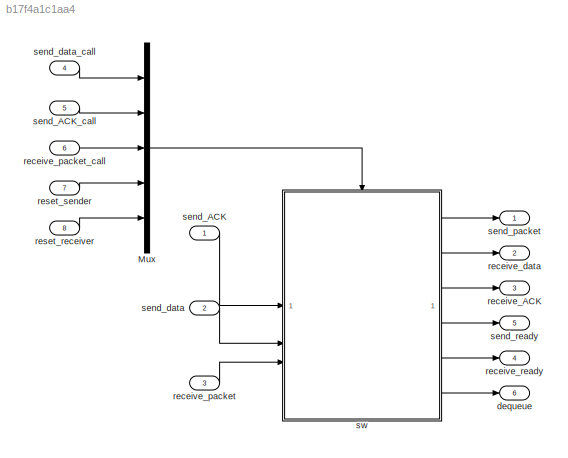
MODEL slx_b17f4a1c1aa4
KIND model
CONFIG AbsTol = auto
CONFIG EnableMultiTasking = off
CONFIG FixedStep = 0.01
CONFIG MaxStep = auto
CONFIG MinStep = auto
CONFIG RelTol = 1e-3
CONFIG SampleTimeConstraint = Unconstrained
CONFIG SolverName = FixedStepAuto
CONFIG StartTime = 0.0
CONFIG StopTime = 10.0
BLOCK [Mux] Mux
  DisplayOption = bar
  Inputs = 5
BLOCK [Outport] dequeue
  OutDataTypeStr = boolean
  Port = 6
BLOCK [Outport] receive_ACK
  OutDataTypeStr = uint8
  Port = 3
BLOCK [Outport] receive_data
  OutDataTypeStr = uint8
  Port = 2
BLOCK [Inport] receive_packet
  OutDataTypeStr = uint16
  Port = 3
BLOCK [Inport] receive_packet_call
  OutDataTypeStr = boolean
  Port = 6
BLOCK [Outport] receive_ready
  OutDataTypeStr = boolean
  Port = 4
BLOCK [Inport] reset_receiver
  OutDataTypeStr = boolean
  Port = 8
BLOCK [Inport] reset_sender
  OutDataTypeStr = boolean
  Port = 7
BLOCK [Inport] send_ACK
  OutDataTypeStr = uint8
BLOCK [Inport] send_ACK_call
  OutDataTypeStr = boolean
  Port = 5
BLOCK [Inport] send_data
  OutDataTypeStr = uint8
  Port = 2
BLOCK [Inport] send_data_call
  OutDataTypeStr = boolean
  Port = 4
BLOCK [Outport] send_packet
  OutDataTypeStr = uint16
BLOCK [Outport] send_ready
  OutDataTypeStr = boolean
  Port = 5
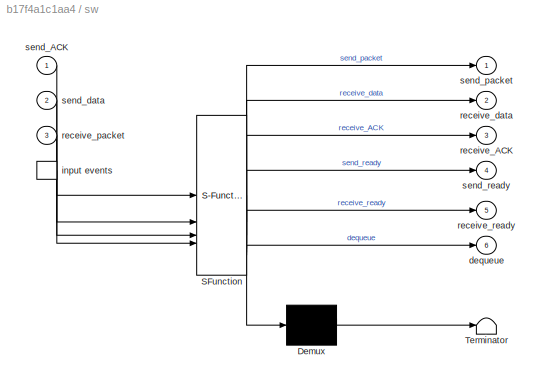
BLOCK [SubSystem] sw
  ErrorFcn = Stateflow.Translate.translate
  PermitHierarchicalResolution = ExplicitOnly
  SFBlockType = Chart
  TreatAsAtomicUnit = on
BLOCK [Demux] sw/ Demux 
  Outputs = 1
BLOCK [S-Function] sw/ SFunction 
  EnableBusSupport = on
  FunctionName = sf_sfun
  PortCounts = [4 7]
  SFcnIsStateOwnerBlock = off
  SFunctionDeploymentMode = off
  Tag = Stateflow S-Function 2
BLOCK [Terminator] sw/ Terminator 
BLOCK [Outport] sw/dequeue
  Port = 6
BLOCK [TriggerPort] sw/input events
  ShowOutputPort = on
  StatesWhenEnabling = held
  TriggerType = either
  VariantControl = (inherit)
BLOCK [Outport] sw/receive_ACK
  Port = 3
BLOCK [Outport] sw/receive_data
  Port = 2
BLOCK [Inport] sw/receive_packet
  Port = 3
BLOCK [Outport] sw/receive_ready
  Port = 5
BLOCK [Inport] sw/send_ACK
BLOCK [Inport] sw/send_data
  Port = 2
BLOCK [Outport] sw/send_packet
BLOCK [Outport] sw/send_ready
  Port = 4
LINE Mux:1 -> sw:trigger
LINE receive_packet:1 -> sw:3
LINE receive_packet_call:1 -> Mux:3
LINE reset_receiver:1 -> Mux:5
LINE reset_sender:1 -> Mux:4
LINE send_ACK:1 -> sw:1
LINE send_ACK_call:1 -> Mux:2
LINE send_data:1 -> sw:2
LINE send_data_call:1 -> Mux:1
LINE sw:1 -> send_packet:1
LINE sw:2 -> receive_data:1
LINE sw:3 -> receive_ACK:1
LINE sw:4 -> send_ready:1
LINE sw:5 -> receive_ready:1
LINE sw:6 -> dequeue:1
CHART sw states=12 transitions=8
  STATE_LABEL 'send'
  STATE_LABEL 'Idle\n'
  STATE_LABEL 'Wait_for_ack'
  STATE_LABEL '[after(TIMEOUT, sec)]{send_packet = uint16(calculation(send_data, send_tag)); \nsend(send_ready);}'
  STATE_LABEL 'reset_sender{c_ACK = 0; send_tag = 1}'
  STATE_LABEL 'send_data_call {send_packet = uint16(calculation(send_data, send_tag)); send(send_ready);}'
  STATE_LABEL 'send_ACK_call [checkACK(send_ACK, c_ACK)]{c_ACK = reset_ACK(c_ACK); send_tag = 1-send_tag; send(dequeue);}'
  STATE_LABEL 'Idle\n'
  STATE_LABEL 'Wait_for_ack'
  STATE_LABEL 'receive'
  STATE_LABEL 'state\n\n'
  STATE_LABEL 'reset_receiver{receive_c_ack = 0; receive_tag = 1;}'
  STATE_LABEL 'receive_packet_call[check_packet(receive_packet, receive_tag)]\n{[receive_data, receive_ACK, receive_c_ack] = send_data_ack(receive_packet, receive_c_ack); \nreceive_tag = 1-receive_tag; send(receive_ready);}'
  STATE_LABEL 'state\n\n'
  STATE_LABEL 'header = ack_crc(value, polynomial)'
  STATE_LABEL 'SCRIPT:\nfunction header = ack_crc(value, polynomial)\n        \n    % Initialize the CRC register to 0\n    crc = uint8(0);\n        \n    % Loop over each bit in the input byte (MSB first)\n    for i = 7:-1:-4\n        % XOR the MSB of the input with the MSB of the CRC register\n        crc = bitxor(crc, bitand(bitshift(value, -i), 1));  % Shift input and XOR\n            \n        % If the MSB of the CRC ...<+503ch>'
  STATE_LABEL '[d, a, nc]= send_data_ack(p, c)'
  STATE_LABEL 'SCRIPT:\nfunction [d, a, nc]= send_data_ack(p, c)\n\n    d = uint8(bitand(p, 0x00FF));\n\n    a = bitor(uint8(c), bitshift(uint8(ack_crc(uint8(c), 19)), 4));\n\n    if c == 15\n        nc = uint8(0);\n    else\n        nc = uint8(c+1);\n    end\n\nend'
  STATE_LABEL 'new_ca = reset_ACK(ca)'
  STATE_LABEL 'SCRIPT:\nfunction new_ca = reset_ACK(ca)\n\n    new_ca = ca + 1;\n\n    if new_ca == 16\n        new_ca = uint8(0);\n    end\nend'
  STATE_LABEL 'output = calculation(input, c_tag)'
  STATE_LABEL 'SCRIPT:\nfunction output = calculation(input, c_tag)\n    \n    \n    output = bitor(bitor(uint16(input), bitshift(uint16(c_tag), 8)), bitshift(uint16(crc4(input, c_tag, 19)), 9));\n\nend\n'
  STATE_LABEL 'f = checkACK(ack, check)'
  STATE_LABEL 'SCRIPT:\nfunction f = checkACK(ack, check)\n\n    header = uint8(bitshift(ack, -4));\n    ack_value = uint8(bitand(ack, 0x0F));\n    if ack_crc(ack_value, 19) == header && ack_value == check\n        f = true;\n    else\n        f = false;\n    end\n    \nend\n'
  STATE_LABEL 'header = crc4(value, t, polynomial)'
  STATE_LABEL 'SCRIPT:\nfunction header = crc4(value, t, polynomial)\n        \n    % Initialize the CRC register to 0\n    crc = uint16(0);\n    input = bitor(uint16(value), bitshift(uint16(t), 8));\n        \n    % Loop over each bit in the input byte (MSB first)\n    for i = 8:-1:-4\n        % XOR the MSB of the input with the MSB of the CRC register\n        crc = bitxor(crc, bitand(bitshift(input, -i), 1));  % Shift ...<+569ch>'
  STATE_LABEL 'f = check_packet(p, t)'
  STATE_LABEL 'SCRIPT:\nfunction f = check_packet(p, t)\n\n    header = uint8(bitshift(p, -9));\n    raw_data = uint8(bitand(p, 0x00FF));\n    checktag = bitget(p, 9);\n    if crc4(raw_data, receive_tag, 19) == header && checktag == t\n        f = true;\n    else\n        f = false;\n    end\n    \nend'
CHART  states=0 transitions=0
